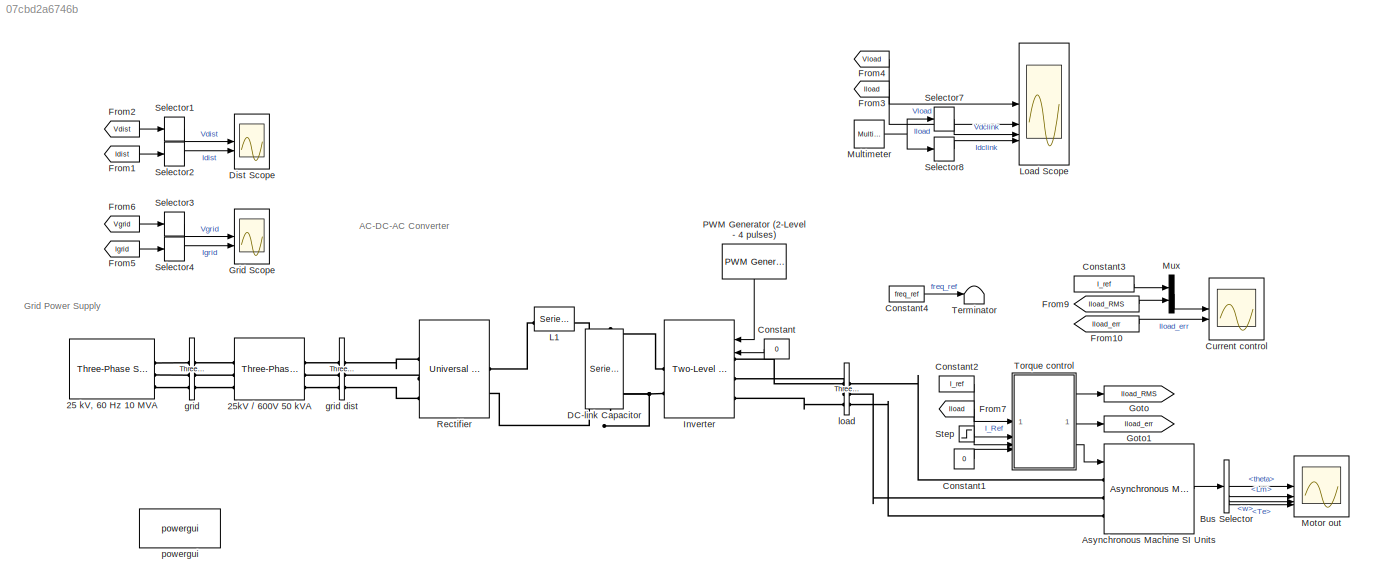
MODEL slx_07cbd2a6746b
KIND model
CONFIG AbsTol = auto
CONFIG EnableMultiTasking = off
CONFIG FixedStep = Ts
CONFIG MaxStep = auto
CONFIG MinStep = auto
CONFIG RelTol = 1e-3
CONFIG SampleTimeConstraint = Unconstrained
CONFIG SolverName = FixedStepDiscrete
CONFIG StartTime = 0.0
CONFIG StopTime = Tf
WORKSPACE source: mxarray member
WORKSPACE I_ref = 6.5
WORKSPACE Ki_torque = 36
WORKSPACE Kp_torque = 0.04
WORKSPACE T_save_start = 0.3
WORKSPACE Tf = 0.5
WORKSPACE Ts = 1e-06
WORKSPACE capacitor_C = 0.000332
WORKSPACE capacitor_R = 0.03
WORKSPACE freq_ref = 60
WORKSPACE fsw = 100000
WORKSPACE source_L = 0
WORKSPACE source_R = 0
BLOCK [Reference] 25 kV, 60 Hz 10 MVA  REF=spsThreePhaseSourceLib/Three-Phase Source
  LibrarySourceBlock = sps_lib/Sources/Three-Phase Source
  SourceBlock = spsThreePhaseSourceLib/Three-Phase Source
  SourceType = Three-Phase Source
BLOCK [Reference] 25kV // 600V 50 kVA  REF=spsThreePhaseTransformerTwoWindingsLib/Three-Phase
Transformer
(Two Windings)
  AttributesFormatString = \n
  LibrarySourceBlock = sps_lib/Power Grid Elements/Three-Phase\nTransformer\n(Two Windings)
  SourceBlock = spsThreePhaseTransformerTwoWindingsLib/Three-Phase\nTransformer\n(Two Windings)
  SourceType = Three-Phase Transformer (Two Windings)
BLOCK [Reference] Asynchronous Machine SI Units  REF=spsAsynchronousMachineSIUnitsLib/Asynchronous Machine
SI Units
  SourceBlock = spsAsynchronousMachineSIUnitsLib/Asynchronous Machine\nSI Units
  SourceType = Asynchronous Machine
BLOCK [BusSelector] Bus Selector
  OutputSignals = theta,Lm,w,Te
BLOCK [Constant] Constant
  Value = 0
BLOCK [Constant] Constant1
  SampleTime = Ts
  Value = 0
BLOCK [Constant] Constant2
  SampleTime = Ts
  Value = I_ref
BLOCK [Constant] Constant3
  SampleTime = Ts
  Value = I_ref
BLOCK [Constant] Constant4
  SampleTime = Ts
  Value = freq_ref
BLOCK [Scope] Current control
  Floating = off
  NumInputPorts = 2
  ScopeSpecificationString = Simulink.scopes.TimeScopeBlockCfg('CurrentConfiguration', extmgr.ConfigurationSet(extmgr.Configuration('Core','General UI',true),extmgr.Configuration('Core','Source UI',true),extmgr.Configuration('Sources','WiredSimulink',true,'DataLoggingSaveFormat','StructureWithTime','DataLoggingMaxPoints','50000','DataLoggingDecimation','10','DataLoggingDecimateData',true,'DataLoggingLimitDataPoints',true,'Dat...<+2430ch>
BLOCK [Reference] DC-link Capacitor  REF=spsSeriesRLCBranchLib/Series RLC Branch
  LibrarySourceBlock = sps_lib/Passives/Series RLC Branch
  NameLocation = left
  SourceBlock = spsSeriesRLCBranchLib/Series RLC Branch
  SourceType = Series RLC Branch
BLOCK [Scope] Dist Scope
  Floating = off
  NumInputPorts = 2
  ScopeSpecificationString = Simulink.scopes.TimeScopeBlockCfg('CurrentConfiguration', extmgr.ConfigurationSet(extmgr.Configuration('Core','General UI',true),extmgr.Configuration('Core','Source UI',true),extmgr.Configuration('Sources','WiredSimulink',true,'DataLoggingVariableName','ScopeData1','DataLoggingDecimation','1','DataLoggingSaveFormat','StructureWithTime'),extmgr.Configuration('Visuals','Time Domain',true,'Serialized...<+2340ch>
BLOCK [From] From1
  GotoTag = Idist
  TagVisibility = global
BLOCK [From] From10
  GotoTag = Iload_err
BLOCK [From] From2
  GotoTag = Vdist
  TagVisibility = global
BLOCK [From] From3
  GotoTag = Iload
  TagVisibility = global
BLOCK [From] From4
  GotoTag = Vload
  TagVisibility = global
BLOCK [From] From5
  GotoTag = Igrid
  TagVisibility = global
BLOCK [From] From6
  GotoTag = Vgrid
  TagVisibility = global
BLOCK [From] From7
  GotoTag = Iload
  TagVisibility = global
BLOCK [From] From9
  GotoTag = Iload_RMS
BLOCK [Goto] Goto
  GotoTag = Iload_RMS
BLOCK [Goto] Goto1
  GotoTag = Iload_err
BLOCK [Scope] Grid Scope
  Floating = off
  NumInputPorts = 2
  ScopeSpecificationString = Simulink.scopes.TimeScopeBlockCfg('CurrentConfiguration', extmgr.ConfigurationSet(extmgr.Configuration('Core','General UI',true),extmgr.Configuration('Core','Source UI',true),extmgr.Configuration('Sources','WiredSimulink',true,'DataLoggingDecimation','1','DataLoggingSaveFormat','StructureWithTime'),extmgr.Configuration('Visuals','Time Domain',true,'SerializedDisplays',{struct('MinYLimReal','-25322...<+2311ch>
BLOCK [Reference] Inverter  REF=spsTwoLevelConverterLib/Two-Level Converter
  LibrarySourceBlock = sps_lib/Power Electronics/Two-Level Converter
  SourceBlock = spsTwoLevelConverterLib/Two-Level Converter
  SourceType = Two-Level Converter
BLOCK [Reference] L1  REF=spsSeriesRLCBranchLib/Series RLC Branch
  AttributesFormatString = \n
  LibrarySourceBlock = sps_lib/Passives/Series RLC Branch
  NameLocation = top
  SourceBlock = spsSeriesRLCBranchLib/Series RLC Branch
  SourceType = Series RLC Branch
BLOCK [Scope] Load Scope
  Floating = off
  NumInputPorts = 4
  ScopeSpecificationString = Simulink.scopes.TimeScopeBlockCfg('CurrentConfiguration', extmgr.ConfigurationSet(extmgr.Configuration('Core','General UI',true),extmgr.Configuration('Core','Source UI',true),extmgr.Configuration('Sources','WiredSimulink',true,'DataLoggingVariableName','ScopeData2','DataLoggingDecimation','1','DataLoggingSaveFormat','StructureWithTime'),extmgr.Configuration('Visuals','Time Domain',true,'Serialized...<+3960ch>
BLOCK [Scope] Motor out
  Floating = off
  NumInputPorts = 4
  ScopeSpecificationString = Simulink.scopes.TimeScopeBlockCfg('CurrentConfiguration', extmgr.ConfigurationSet(extmgr.Configuration('Core','General UI',true),extmgr.Configuration('Core','Source UI',true),extmgr.Configuration('Sources','WiredSimulink',true,'DataLoggingSaveFormat','StructureWithTime','DataLoggingMaxPoints','50000','DataLoggingDecimation','10','DataLoggingDecimateData',true,'DataLoggingLimitDataPoints',true,'Dat...<+4033ch>
BLOCK [Reference] Multimeter  REF=spsMultimeterLib/Multimeter
  LibrarySourceBlock = sps_lib/Sensors and Measurements/Multimeter
  SourceBlock = spsMultimeterLib/Multimeter
  SourceType = Multimeter
BLOCK [Mux] Mux
  DisplayOption = bar
  Inputs = 2
BLOCK [Reference] PWM Generator (2-Level - 4 pulses)  REF=spsPWMGenerator2LevelLib/PWM Generator
(2-Level)
  LibrarySourceBlock = sps_lib/Power Electronics/Power Electronics Control/PWM Generator\n(2-Level)
  NameLocation = left
  SourceBlock = spsPWMGenerator2LevelLib/PWM Generator\n(2-Level)
  SourceType = PWM Generator (2-Level)
BLOCK [Reference] Rectifier  REF=spsUniversalBridgeLib/Universal Bridge
  AttributesFormatString = \n
  LibrarySourceBlock = sps_lib/Power Electronics/Universal Bridge
  SourceBlock = spsUniversalBridgeLib/Universal Bridge
  SourceType = Universal Bridge
BLOCK [Selector] Selector1
  IndexMode = Zero-based
  IndexOptions = Index vector (dialog)
  Indices = 0
  InputPortWidth = 3
  OutputSizes = 1
BLOCK [Selector] Selector2
  IndexMode = Zero-based
  IndexOptions = Index vector (dialog)
  Indices = 0
  InputPortWidth = 3
  OutputSizes = 1
BLOCK [Selector] Selector3
  IndexMode = Zero-based
  IndexOptions = Index vector (dialog)
  Indices = 0
  InputPortWidth = 3
  OutputSizes = 1
BLOCK [Selector] Selector4
  IndexMode = Zero-based
  IndexOptions = Index vector (dialog)
  Indices = 0
  InputPortWidth = 3
  OutputSizes = 1
BLOCK [Selector] Selector7
  IndexMode = Zero-based
  IndexOptions = Index vector (dialog)
  Indices = 0
  InputPortWidth = 2
  OutputSizes = 1
BLOCK [Selector] Selector8
  IndexMode = Zero-based
  IndexOptions = Index vector (dialog)
  Indices = 1
  InputPortWidth = 2
  OutputSizes = 1
BLOCK [Step] Step
  After = 0
  Before = 1
  SampleTime = Ts
  Time = 0.1
BLOCK [Terminator] Terminator
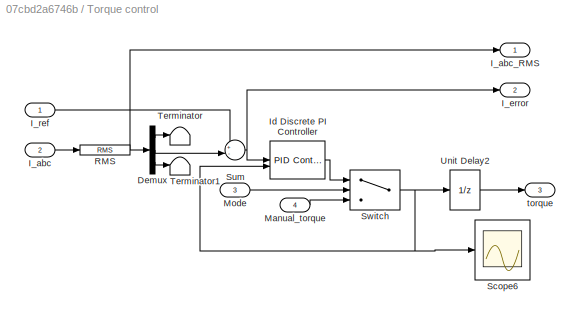
BLOCK [SubSystem] Torque control
  NameLocation = top
BLOCK [Demux] Torque control/Demux
  Outputs = 3
BLOCK [Inport] Torque control/I_abc
  Port = 2
BLOCK [Outport] Torque control/I_abc_RMS
BLOCK [Outport] Torque control/I_error
  Port = 2
BLOCK [Inport] Torque control/I_ref
BLOCK [Reference] Torque control/Id Discrete PI Controller  REF=slpidlib/PID Controller
  NameLocation = top
  SourceBlock = slpidlib/PID Controller
  SourceType = PID 1dof
BLOCK [Inport] Torque control/Manual_torque
  Port = 4
BLOCK [Inport] Torque control/Mode
  Port = 3
BLOCK [Reference] Torque control/RMS  REF=spsRMSLib/RMS
  SourceBlock = spsRMSLib/RMS
  SourceType = RMS
BLOCK [Scope] Torque control/Scope6
  Floating = off
  NumInputPorts = 1
  ScopeSpecificationString = Simulink.scopes.TimeScopeBlockCfg('CurrentConfiguration', extmgr.ConfigurationSet(extmgr.Configuration('Core','General UI',true),extmgr.Configuration('Core','Source UI',true),extmgr.Configuration('Sources','WiredSimulink',true,'DataLoggingSaveFormat','StructureWithTime','DataLoggingMaxPoints','50000','DataLoggingDecimation','10','DataLoggingDecimateData',true,'DataLoggingLimitDataPoints',true,'Dat...<+1685ch>
BLOCK [Sum] Torque control/Sum
  Inputs = +-|
BLOCK [Switch] Torque control/Switch
  InputSameDT = off
  SaturateOnIntegerOverflow = off
  Threshold = 0.5
BLOCK [Terminator] Torque control/Terminator
BLOCK [Terminator] Torque control/Terminator1
BLOCK [UnitDelay] Torque control/Unit Delay2
  HasFrameUpgradeWarning = on
  NameLocation = top
  SampleTime = -1
BLOCK [Outport] Torque control/torque
  Port = 3
BLOCK [Reference] grid  REF=spsThreePhaseVIMeasurementLib/Three-Phase
V-I Measurement
  LibrarySourceBlock = sps_lib/Sensors and Measurements/Three-Phase\nV-I Measurement
  SourceBlock = spsThreePhaseVIMeasurementLib/Three-Phase\nV-I Measurement
  SourceType = Three-Phase VI Measurement
BLOCK [Reference] grid dist  REF=spsThreePhaseVIMeasurementLib/Three-Phase
V-I Measurement
  LibrarySourceBlock = sps_lib/Sensors and Measurements/Three-Phase\nV-I Measurement
  SourceBlock = spsThreePhaseVIMeasurementLib/Three-Phase\nV-I Measurement
  SourceType = Three-Phase VI Measurement
BLOCK [Reference] load  REF=spsThreePhaseVIMeasurementLib/Three-Phase
V-I Measurement
  LibrarySourceBlock = sps_lib/Sensors and Measurements/Three-Phase\nV-I Measurement
  SourceBlock = spsThreePhaseVIMeasurementLib/Three-Phase\nV-I Measurement
  SourceType = Three-Phase VI Measurement
BLOCK [Reference] powergui  REF=spspowerguiLib/powergui
  LibrarySourceBlock = sps_lib/powergui
  Priority = 1
  SourceBlock = spspowerguiLib/powergui
  SourceType = PSB option menu block
ANNOTATION (root): AC-DC-AC Converter
ANNOTATION (root): Grid Power Supply
LINE Asynchronous Machine SI Units:1 -> Bus Selector:1
LINE Bus Selector:1 -> Motor out:1
LINE Bus Selector:2 -> Motor out:2
LINE Bus Selector:3 -> Motor out:3
LINE Bus Selector:4 -> Motor out:4
LINE Constant1:1 -> Torque control:4
LINE Constant2:1 -> Torque control:1
LINE Constant3:1 -> Mux:1
LINE Constant4:1 -> Terminator:1
LINE Constant:1 -> Inverter:2
LINE From10:1 -> Current control:2
LINE From1:1 -> Selector2:1
LINE From2:1 -> Selector1:1
LINE From3:1 -> Load Scope:2
LINE From4:1 -> Load Scope:1
LINE From5:1 -> Selector4:1
LINE From6:1 -> Selector3:1
LINE From7:1 -> Torque control:2
LINE From9:1 -> Mux:2
NET Multimeter:1 -> Selector7:1, Selector8:1
LINE Mux:1 -> Current control:1
LINE PWM Generator (2-Level - 4 pulses):1 -> Inverter:1
LINE Selector1:1 -> Dist Scope:1
LINE Selector2:1 -> Dist Scope:2
LINE Selector3:1 -> Grid Scope:1
LINE Selector4:1 -> Grid Scope:2
LINE Selector7:1 -> Load Scope:3
LINE Selector8:1 -> Load Scope:4
LINE Step:1 -> Torque control:3
LINE Torque control/Demux:1 -> Torque control/Terminator:1
LINE Torque control/Demux:2 -> Torque control/Sum:2
LINE Torque control/Demux:3 -> Torque control/Terminator1:1
LINE Torque control/I_abc:1 -> Torque control/RMS:1
LINE Torque control/I_ref:1 -> Torque control/Sum:1
LINE Torque control/Id Discrete PI Controller:1 -> Torque control/Switch:1
LINE Torque control/Manual_torque:1 -> Torque control/Switch:3
LINE Torque control/Mode:1 -> Torque control/Switch:2
NET Torque control/RMS:1 -> Torque control/Demux:1, Torque control/I_abc_RMS:1
NET Torque control/Sum:1 -> Torque control/I_error:1, Torque control/Id Discrete PI Controller:1
NET Torque control/Switch:1 -> Torque control/Id Discrete PI Controller:2, Torque control/Scope6:1, Torque control/Unit Delay2:1
LINE Torque control/Unit Delay2:1 -> Torque control/torque:1
LINE Torque control:1 -> Goto:1
LINE Torque control:2 -> Goto1:1
LINE Torque control:3 -> Asynchronous Machine SI Units:1
PLINE 25 kV, 60 Hz 10 MVA:RConn1 -- grid:LConn1
PLINE 25 kV, 60 Hz 10 MVA:RConn2 -- grid:LConn2
PLINE 25 kV, 60 Hz 10 MVA:RConn3 -- grid:LConn3
PLINE 25kV // 600V 50 kVA:LConn1 -- grid:RConn1
PLINE 25kV // 600V 50 kVA:LConn2 -- grid:RConn2
PLINE 25kV // 600V 50 kVA:LConn3 -- grid:RConn3
PLINE 25kV // 600V 50 kVA:RConn1 -- grid dist:LConn1
PLINE 25kV // 600V 50 kVA:RConn2 -- grid dist:LConn2
PLINE 25kV // 600V 50 kVA:RConn3 -- grid dist:LConn3
PLINE Asynchronous Machine SI Units:LConn1 -- load:RConn1
PLINE Asynchronous Machine SI Units:LConn2 -- load:RConn2
PLINE Asynchronous Machine SI Units:LConn3 -- load:RConn3
PNET net1: DC-link Capacitor:LConn1 -- Inverter:RConn1 -- L1:RConn1
PNET net2: DC-link Capacitor:RConn1 -- Inverter:RConn2 -- Rectifier:RConn2
PLINE Inverter:LConn1 -- load:LConn1
PLINE Inverter:LConn2 -- load:LConn2
PLINE Inverter:LConn3 -- load:LConn3
PLINE L1:LConn1 -- Rectifier:RConn1
PLINE Rectifier:LConn1 -- grid dist:RConn1
PLINE Rectifier:LConn2 -- grid dist:RConn2
PLINE Rectifier:LConn3 -- grid dist:RConn3
note: NET lines group one-source signal fan-out (src -> all destinations, sorted); 1:1 wires keep LINE; PNET lines group multi-terminal physical nets as a canonical sorted terminal list (undirected conserving connections); 2-terminal nets keep the pairwise PLINE form
